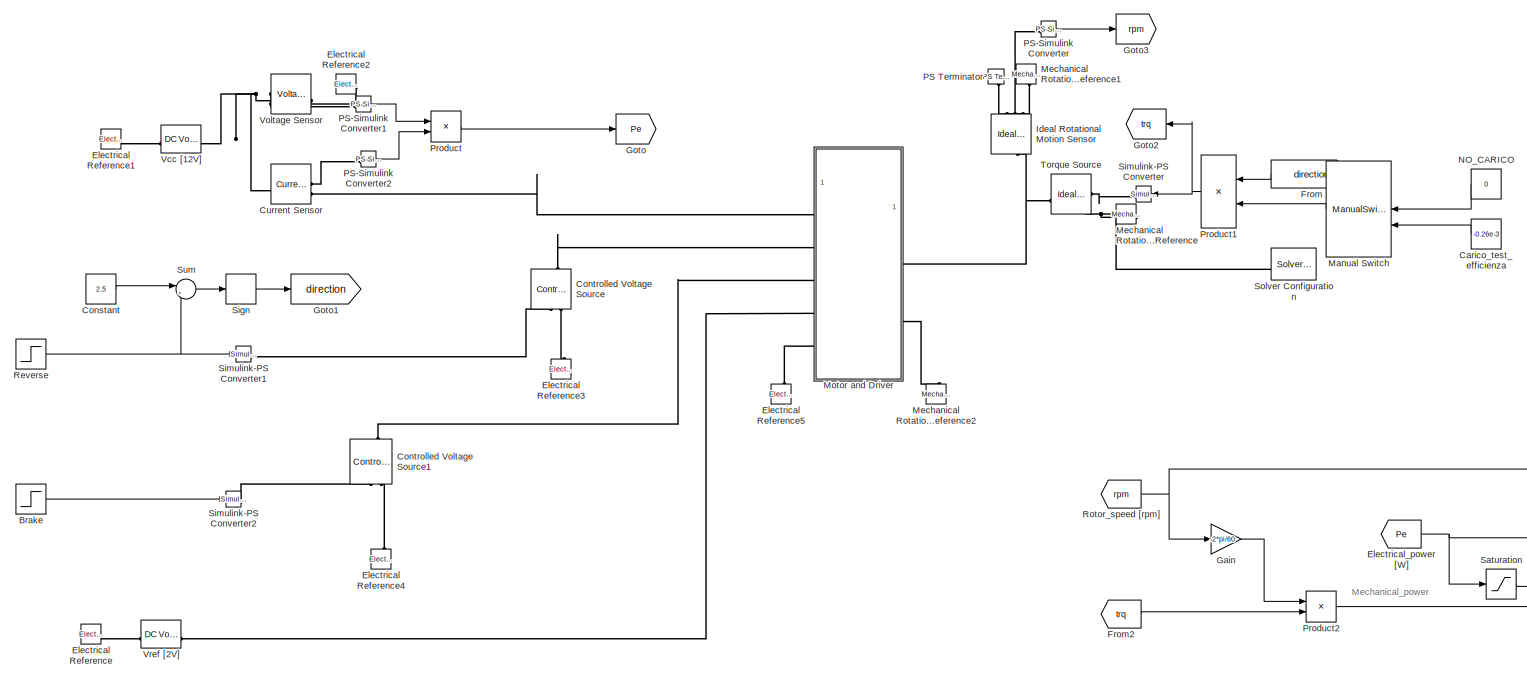
[diagram: root canvas - part 1/2, most of the canvas]
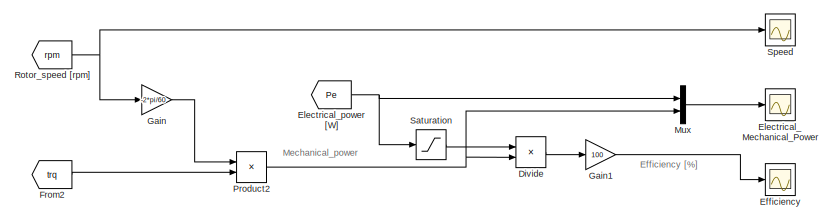
[diagram: root canvas - part 2/2, bottom right region]
MODEL slx_d8c86bf03504
KIND model
CONFIG AbsTol = auto
CONFIG EnableMultiTasking = off
CONFIG FixedStep = auto
CONFIG MaxStep = auto
CONFIG MinStep = auto
CONFIG RelTol = 1e-3
CONFIG SampleTimeConstraint = Unconstrained
CONFIG SolverName = VariableStepAuto
CONFIG StartTime = 0.0
CONFIG StopTime = 3
BLOCK [Step] Brake
  After = 5
  SampleTime = 0
  Time = 2
BLOCK [Constant] Carico_test_efficienza
  Value = -0.26e-3
BLOCK [Constant] Constant
  Value = 2.5
BLOCK [Reference] Controlled Voltage Source  REF=fl_lib/Electrical/Electrical Sources/Controlled Voltage
Source
  NameLocation = right
  SourceBlock = fl_lib/Electrical/Electrical Sources/Controlled Voltage\nSource
  SourceType = Controlled Voltage\nSource
BLOCK [Reference] Controlled Voltage Source1  REF=fl_lib/Electrical/Electrical Sources/Controlled Voltage
Source
  NameLocation = right
  SourceBlock = fl_lib/Electrical/Electrical Sources/Controlled Voltage\nSource
  SourceType = Controlled Voltage\nSource
BLOCK [Reference] Current Sensor  REF=fl_lib/Electrical/Electrical Sensors/Current Sensor
  SourceBlock = fl_lib/Electrical/Electrical Sensors/Current Sensor
  SourceType = Current Sensor
BLOCK [Product] Divide
  Inputs = /*
BLOCK [Scope] Efficiency
  Floating = off
  NumInputPorts = 1
  ScopeSpecificationString = Simulink.scopes.TimeScopeBlockCfg('CurrentConfiguration', extmgr.ConfigurationSet(extmgr.Configuration('Core','General UI',true),extmgr.Configuration('Core','Source UI',true),extmgr.Configuration('Sources','WiredSimulink',true),extmgr.Configuration('Visuals','Time Domain',true,'SerializedDisplays',{struct('MinYLimReal','-1.00000','MaxYLimReal','1.00000','YLabelReal','','MinYLimMag','0.00000','MaxY...<+1435ch>
BLOCK [Reference] Electrical Reference  REF=fl_lib/Electrical/Electrical Elements/Electrical Reference
  NameLocation = left
  SourceBlock = fl_lib/Electrical/Electrical Elements/Electrical Reference
  SourceType = Electrical Reference
BLOCK [Reference] Electrical Reference1  REF=fl_lib/Electrical/Electrical Elements/Electrical Reference
  NameLocation = left
  SourceBlock = fl_lib/Electrical/Electrical Elements/Electrical Reference
  SourceType = Electrical Reference
BLOCK [Reference] Electrical Reference2  REF=fl_lib/Electrical/Electrical Elements/Electrical Reference
  NameLocation = right
  SourceBlock = fl_lib/Electrical/Electrical Elements/Electrical Reference
  SourceType = Electrical Reference
BLOCK [Reference] Electrical Reference3  REF=fl_lib/Electrical/Electrical Elements/Electrical Reference
  LibrarySourceBlock = ee_lib/Connectors &\nReferences/Electrical Reference
  NameLocation = right
  SourceBlock = fl_lib/Electrical/Electrical Elements/Electrical Reference
  SourceType = Electrical Reference
BLOCK [Reference] Electrical Reference4  REF=fl_lib/Electrical/Electrical Elements/Electrical Reference
  LibrarySourceBlock = ee_lib/Connectors &\nReferences/Electrical Reference
  NameLocation = right
  SourceBlock = fl_lib/Electrical/Electrical Elements/Electrical Reference
  SourceType = Electrical Reference
BLOCK [Reference] Electrical Reference5  REF=fl_lib/Electrical/Electrical Elements/Electrical Reference
  LibrarySourceBlock = ee_lib/Connectors &\nReferences/Electrical Reference
  NameLocation = right
  SourceBlock = fl_lib/Electrical/Electrical Elements/Electrical Reference
  SourceType = Electrical Reference
BLOCK [Scope] Electrical_Mechanical_Power
  Floating = off
  NumInputPorts = 1
  ScopeSpecificationString = Simulink.scopes.TimeScopeBlockCfg('CurrentConfiguration', extmgr.ConfigurationSet(extmgr.Configuration('Core','General UI',true),extmgr.Configuration('Core','Source UI',true),extmgr.Configuration('Sources','WiredSimulink',true,'DataLoggingVariableName','ScopeData2'),extmgr.Configuration('Visuals','Time Domain',true,'SerializedDisplays',{struct('MinYLimReal','-0.54621','MaxYLimReal','4.91592','YLab...<+1531ch>
BLOCK [From] Electrical_power [W]
  GotoTag = Pe
BLOCK [From] From
  GotoTag = direction
BLOCK [From] From2
  GotoTag = trq
BLOCK [Gain] Gain
  Gain = -2*pi/60
BLOCK [Gain] Gain1
  Gain = 100
BLOCK [Goto] Goto
  GotoTag = Pe
BLOCK [Goto] Goto1
  GotoTag = direction
BLOCK [Goto] Goto2
  GotoTag = trq
BLOCK [Goto] Goto3
  GotoTag = rpm
BLOCK [Reference] Ideal Rotational Motion Sensor  REF=fl_lib/Mechanical/Mechanical Sensors/Ideal Rotational
Motion Sensor
  NameLocation = right
  SourceBlock = fl_lib/Mechanical/Mechanical Sensors/Ideal Rotational\nMotion Sensor
  SourceType = Ideal Rotational\nMotion Sensor
BLOCK [ManualSwitch] Manual Switch
BLOCK [Reference] Mechanical Rotational Reference  REF=fl_lib/Mechanical/Rotational Elements/Mechanical
Rotational Reference
  NameLocation = top
  SourceBlock = fl_lib/Mechanical/Rotational Elements/Mechanical\nRotational Reference
  SourceType = Mechanical\nRotational Reference
BLOCK [Reference] Mechanical Rotational Reference1  REF=fl_lib/Mechanical/Rotational Elements/Mechanical
Rotational Reference
  NameLocation = left
  SourceBlock = fl_lib/Mechanical/Rotational Elements/Mechanical\nRotational Reference
  SourceType = Mechanical\nRotational Reference
BLOCK [Reference] Mechanical Rotational Reference2  REF=fl_lib/Mechanical/Rotational Elements/Mechanical
Rotational Reference
  NameLocation = right
  SourceBlock = fl_lib/Mechanical/Rotational Elements/Mechanical\nRotational Reference
  SourceType = Mechanical\nRotational Reference
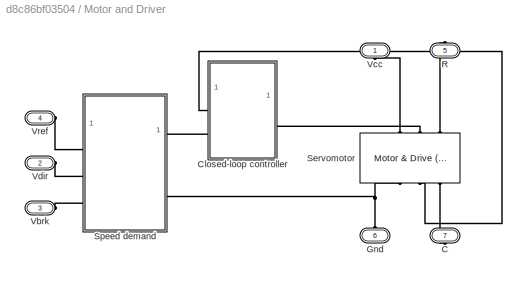
BLOCK [SubSystem] Motor and Driver
  Tag = PublishSubsystem
BLOCK [PMIOPort] Motor and Driver/C
  NameLocation = right
  Port = 7
  Side = Right
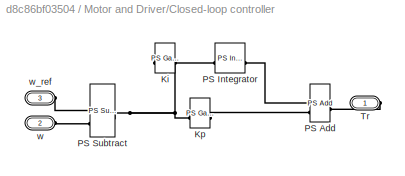
BLOCK [SubSystem] Motor and Driver/Closed-loop controller
BLOCK [Reference] Motor and Driver/Closed-loop controller/Ki  REF=fl_ps_legacy_lib/Legacy Physical
Signals/Functions/PS Gain
  SourceBlock = fl_ps_legacy_lib/Legacy Physical\nSignals/Functions/PS Gain
  SourceType = PS Gain
BLOCK [Reference] Motor and Driver/Closed-loop controller/Kp  REF=fl_ps_legacy_lib/Legacy Physical
Signals/Functions/PS Gain
  SourceBlock = fl_ps_legacy_lib/Legacy Physical\nSignals/Functions/PS Gain
  SourceType = PS Gain
BLOCK [Reference] Motor and Driver/Closed-loop controller/PS Add  REF=fl_ps_legacy_lib/Legacy Physical
Signals/Functions/PS Add
  SourceBlock = fl_ps_legacy_lib/Legacy Physical\nSignals/Functions/PS Add
  SourceType = PS Add
BLOCK [Reference] Motor and Driver/Closed-loop controller/PS Integrator  REF=fl_ps_legacy_lib/Legacy Physical
Signals/Linear Operators/PS Integrator
  SourceBlock = fl_ps_legacy_lib/Legacy Physical\nSignals/Linear Operators/PS Integrator
  SourceType = PS Integrator
BLOCK [Reference] Motor and Driver/Closed-loop controller/PS Subtract  REF=fl_ps_legacy_lib/Legacy Physical
Signals/Functions/PS Subtract
  SourceBlock = fl_ps_legacy_lib/Legacy Physical\nSignals/Functions/PS Subtract
  SourceType = PS Subtract
BLOCK [PMIOPort] Motor and Driver/Closed-loop controller/Tr
  Side = Right
BLOCK [PMIOPort] Motor and Driver/Closed-loop controller/w
  Port = 2
  Side = Left
BLOCK [PMIOPort] Motor and Driver/Closed-loop controller/w_ref
  NameLocation = top
  Port = 3
  Side = Left
BLOCK [PMIOPort] Motor and Driver/Gnd
  NameLocation = left
  Port = 6
  Side = Left
BLOCK [PMIOPort] Motor and Driver/R
  NameLocation = right
  Port = 5
  Side = Right
BLOCK [Reference] Motor and Driver/Servomotor  REF=ee_lib/Electromechanical/Motor & Drive
(System Level)
  NameLocation = left
  SourceBlock = ee_lib/Electromechanical/Motor & Drive\n(System Level)
  SourceType = Motor & Drive\n(System Level)
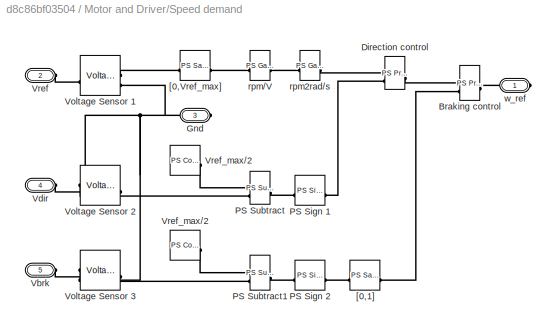
BLOCK [SubSystem] Motor and Driver/Speed demand
BLOCK [Reference] Motor and Driver/Speed demand/ Vref_max//2   REF=fl_lib/Physical Signals/Sources/PS Constant
  SourceBlock = fl_lib/Physical Signals/Sources/PS Constant
  SourceType = PS Constant
BLOCK [Reference] Motor and Driver/Speed demand/Braking control  REF=fl_ps_legacy_lib/Legacy Physical
Signals/Functions/PS Product
  SourceBlock = fl_ps_legacy_lib/Legacy Physical\nSignals/Functions/PS Product
  SourceType = PS Product
BLOCK [Reference] Motor and Driver/Speed demand/Direction control  REF=fl_ps_legacy_lib/Legacy Physical
Signals/Functions/PS Product
  SourceBlock = fl_ps_legacy_lib/Legacy Physical\nSignals/Functions/PS Product
  SourceType = PS Product
BLOCK [PMIOPort] Motor and Driver/Speed demand/Gnd
  Port = 3
  Side = Right
BLOCK [Reference] Motor and Driver/Speed demand/PS Sign 1  REF=fl_ps_legacy_lib/Legacy Physical
Signals/Nonlinear Operators/PS Sign
  SourceBlock = fl_ps_legacy_lib/Legacy Physical\nSignals/Nonlinear Operators/PS Sign
  SourceType = PS Sign
BLOCK [Reference] Motor and Driver/Speed demand/PS Sign 2  REF=fl_ps_legacy_lib/Legacy Physical
Signals/Nonlinear Operators/PS Sign
  SourceBlock = fl_ps_legacy_lib/Legacy Physical\nSignals/Nonlinear Operators/PS Sign
  SourceType = PS Sign
BLOCK [Reference] Motor and Driver/Speed demand/PS Subtract  REF=fl_ps_legacy_lib/Legacy Physical
Signals/Functions/PS Subtract
  SourceBlock = fl_ps_legacy_lib/Legacy Physical\nSignals/Functions/PS Subtract
  SourceType = PS Subtract
BLOCK [Reference] Motor and Driver/Speed demand/PS Subtract1  REF=fl_ps_legacy_lib/Legacy Physical
Signals/Functions/PS Subtract
  SourceBlock = fl_ps_legacy_lib/Legacy Physical\nSignals/Functions/PS Subtract
  SourceType = PS Subtract
BLOCK [PMIOPort] Motor and Driver/Speed demand/Vbrk
  Port = 5
  Side = Left
BLOCK [PMIOPort] Motor and Driver/Speed demand/Vdir
  Port = 4
  Side = Left
BLOCK [Reference] Motor and Driver/Speed demand/Voltage Sensor 1  REF=fl_lib/Electrical/Electrical Sensors/Voltage Sensor
  SourceBlock = fl_lib/Electrical/Electrical Sensors/Voltage Sensor
  SourceType = Voltage Sensor
BLOCK [Reference] Motor and Driver/Speed demand/Voltage Sensor 2  REF=fl_lib/Electrical/Electrical Sensors/Voltage Sensor
  SourceBlock = fl_lib/Electrical/Electrical Sensors/Voltage Sensor
  SourceType = Voltage Sensor
BLOCK [Reference] Motor and Driver/Speed demand/Voltage Sensor 3  REF=fl_lib/Electrical/Electrical Sensors/Voltage Sensor
  SourceBlock = fl_lib/Electrical/Electrical Sensors/Voltage Sensor
  SourceType = Voltage Sensor
BLOCK [PMIOPort] Motor and Driver/Speed demand/Vref
  Port = 2
  Side = Left
BLOCK [Reference] Motor and Driver/Speed demand/Vref_max//2  REF=fl_lib/Physical Signals/Sources/PS Constant
  SourceBlock = fl_lib/Physical Signals/Sources/PS Constant
  SourceType = PS Constant
BLOCK [Reference] Motor and Driver/Speed demand/[0,1]  REF=fl_ps_legacy_lib/Legacy Physical
Signals/Nonlinear Operators/PS Saturation
  SourceBlock = fl_ps_legacy_lib/Legacy Physical\nSignals/Nonlinear Operators/PS Saturation
  SourceType = PS Saturation
BLOCK [Reference] Motor and Driver/Speed demand/[0,Vref_max]  REF=fl_ps_legacy_lib/Legacy Physical
Signals/Nonlinear Operators/PS Saturation
  SourceBlock = fl_ps_legacy_lib/Legacy Physical\nSignals/Nonlinear Operators/PS Saturation
  SourceType = PS Saturation
BLOCK [Reference] Motor and Driver/Speed demand/rpm//V  REF=fl_ps_legacy_lib/Legacy Physical
Signals/Functions/PS Gain
  SourceBlock = fl_ps_legacy_lib/Legacy Physical\nSignals/Functions/PS Gain
  SourceType = PS Gain
BLOCK [Reference] Motor and Driver/Speed demand/rpm2rad//s  REF=fl_ps_legacy_lib/Legacy Physical
Signals/Functions/PS Gain
  SourceBlock = fl_ps_legacy_lib/Legacy Physical\nSignals/Functions/PS Gain
  SourceType = PS Gain
BLOCK [PMIOPort] Motor and Driver/Speed demand/w_ref
  Side = Right
BLOCK [PMIOPort] Motor and Driver/Vbrk
  Port = 3
  Side = Left
BLOCK [PMIOPort] Motor and Driver/Vcc
  NameLocation = left
  Side = Left
BLOCK [PMIOPort] Motor and Driver/Vdir
  Port = 2
  Side = Left
BLOCK [PMIOPort] Motor and Driver/Vref
  Port = 4
  Side = Left
BLOCK [Mux] Mux
  DisplayOption = bar
  Inputs = 2
BLOCK [Constant] NO_CARICO
  NameLocation = top
  Value = 0
BLOCK [Reference] PS Terminator  REF=fl_lib/Physical Signals/Sinks/PS Terminator
  NameLocation = right
  SourceBlock = fl_lib/Physical Signals/Sinks/PS Terminator
  SourceType = PS Terminator
BLOCK [Reference] PS-Simulink Converter  REF=nesl_utility/PS-Simulink
Converter
  SourceBlock = nesl_utility/PS-Simulink\nConverter
  SourceType = PS-Simulink\nConverter
BLOCK [Reference] PS-Simulink Converter1  REF=nesl_utility/PS-Simulink
Converter
  SourceBlock = nesl_utility/PS-Simulink\nConverter
  SourceType = PS-Simulink\nConverter
BLOCK [Reference] PS-Simulink Converter2  REF=nesl_utility/PS-Simulink
Converter
  SourceBlock = nesl_utility/PS-Simulink\nConverter
  SourceType = PS-Simulink\nConverter
BLOCK [Product] Product
BLOCK [Product] Product1
BLOCK [Product] Product2
BLOCK [Step] Reverse
  After = 5
  SampleTime = 0
BLOCK [From] Rotor_speed [rpm]
  GotoTag = rpm
BLOCK [Saturate] Saturation
  LowerLimit = 1e-3
  UpperLimit = inf
BLOCK [Signum] Sign
BLOCK [Reference] Simulink-PS Converter  REF=nesl_utility/Simulink-PS
Converter
  SourceBlock = nesl_utility/Simulink-PS\nConverter
  SourceType = Simulink-PS\nConverter
BLOCK [Reference] Simulink-PS Converter1  REF=nesl_utility/Simulink-PS
Converter
  SourceBlock = nesl_utility/Simulink-PS\nConverter
  SourceType = Simulink-PS\nConverter
BLOCK [Reference] Simulink-PS Converter2  REF=nesl_utility/Simulink-PS
Converter
  SourceBlock = nesl_utility/Simulink-PS\nConverter
  SourceType = Simulink-PS\nConverter
BLOCK [Reference] Solver Configuration  REF=nesl_utility/Solver
Configuration
  SourceBlock = nesl_utility/Solver\nConfiguration
  SourceType = Solver\nConfiguration
BLOCK [Scope] Speed
  Floating = off
  NameLocation = top
  NumInputPorts = 1
  ScopeSpecificationString = Simulink.scopes.TimeScopeBlockCfg('CurrentConfiguration', extmgr.ConfigurationSet(extmgr.Configuration('Core','General UI',true),extmgr.Configuration('Core','Source UI',true),extmgr.Configuration('Sources','WiredSimulink',true,'DataLoggingVariableName','ScopeData1'),extmgr.Configuration('Visuals','Time Domain',true,'SerializedDisplays',{struct('MinYLimReal','-6794.20877','MaxYLimReal','5988.47862'...<+1415ch>
BLOCK [Sum] Sum
  Inputs = |+-
BLOCK [Reference] Torque Source  REF=fl_lib/Mechanical/Mechanical Sources/Ideal Torque Source
  NameLocation = top
  SourceBlock = fl_lib/Mechanical/Mechanical Sources/Ideal Torque Source
  SourceType = Ideal Torque Source
BLOCK [Reference] Vcc [12V]  REF=fl_lib/Electrical/Electrical Sources/DC Voltage Source
  SourceBlock = fl_lib/Electrical/Electrical Sources/DC Voltage Source
  SourceType = DC Voltage Source
BLOCK [Reference] Voltage Sensor  REF=fl_lib/Electrical/Electrical Sensors/Voltage Sensor
  NameLocation = top
  SourceBlock = fl_lib/Electrical/Electrical Sensors/Voltage Sensor
  SourceType = Voltage Sensor
BLOCK [Reference] Vref [2V]  REF=fl_lib/Electrical/Electrical Sources/DC Voltage Source
  SourceBlock = fl_lib/Electrical/Electrical Sources/DC Voltage Source
  SourceType = DC Voltage Source
ANNOTATION (root): Efficiency [%]
ANNOTATION (root): Mechanical_power
LINE Brake:1 -> Simulink-PS Converter2:1
LINE Carico_test_efficienza:1 -> Manual Switch:2
LINE Constant:1 -> Sum:1
LINE Divide:1 -> Gain1:1
NET Electrical_power [W]:1 -> Mux:1, Saturation:1
LINE From2:1 -> Product2:2
LINE From:1 -> Product1:1
LINE Gain1:1 -> Efficiency:1
LINE Gain:1 -> Product2:1
LINE Manual Switch:1 -> Product1:2
LINE Mux:1 -> Electrical_Mechanical_Power:1
LINE NO_CARICO:1 -> Manual Switch:1
LINE PS-Simulink Converter1:1 -> Product:1
LINE PS-Simulink Converter2:1 -> Product:2
LINE PS-Simulink Converter:1 -> Goto3:1
NET Product1:1 -> Goto2:1, Simulink-PS Converter:1
NET Product2:1 -> Divide:2, Mux:2
LINE Product:1 -> Goto:1
NET Reverse:1 -> Simulink-PS Converter1:1, Sum:2
NET Rotor_speed [rpm]:1 -> Gain:1, Speed:1
LINE Saturation:1 -> Divide:1
LINE Sign:1 -> Goto1:1
LINE Sum:1 -> Sign:1
PLINE Controlled Voltage Source1:LConn1 -- Motor and Driver:LConn3
PLINE Controlled Voltage Source1:RConn1 -- Simulink-PS Converter2:RConn1
PLINE Controlled Voltage Source1:RConn2 -- Electrical Reference4:LConn1
PLINE Controlled Voltage Source:LConn1 -- Motor and Driver:LConn2
PLINE Controlled Voltage Source:RConn1 -- Simulink-PS Converter1:RConn1
PLINE Controlled Voltage Source:RConn2 -- Electrical Reference3:LConn1
PNET net1: Current Sensor:LConn1 -- Vcc [12V]:LConn1 -- Voltage Sensor:LConn1
PLINE Current Sensor:RConn1 -- PS-Simulink Converter2:LConn1
PLINE Current Sensor:RConn2 -- Motor and Driver:LConn1
PLINE Electrical Reference1:LConn1 -- Vcc [12V]:RConn1
PLINE Electrical Reference2:LConn1 -- Voltage Sensor:RConn2
PLINE Electrical Reference5:LConn1 -- Motor and Driver:LConn5
PLINE Electrical Reference:LConn1 -- Vref [2V]:RConn1
PNET net2: Ideal Rotational Motion Sensor:LConn1 -- Motor and Driver:RConn1 -- Torque Source:LConn1
PLINE Ideal Rotational Motion Sensor:RConn1 -- Mechanical Rotational Reference1:LConn1
PLINE Ideal Rotational Motion Sensor:RConn2 -- PS-Simulink Converter:LConn1
PLINE Ideal Rotational Motion Sensor:RConn3 -- PS Terminator:LConn1
PLINE Mechanical Rotational Reference2:LConn1 -- Motor and Driver:RConn2
PNET net3: Mechanical Rotational Reference:LConn1 -- Solver Configuration:RConn1 -- Torque Source:RConn2
PLINE Motor and Driver/C:RConn1 -- Motor and Driver/Servomotor:RConn3
PNET net4: Motor and Driver/Closed-loop controller/Ki:LConn1 -- Motor and Driver/Closed-loop controller/Kp:LConn1 -- Motor and Driver/Closed-loop controller/PS Subtract:RConn1
PLINE Motor and Driver/Closed-loop controller/Ki:RConn1 -- Motor and Driver/Closed-loop controller/PS Integrator:LConn1
PLINE Motor and Driver/Closed-loop controller/Kp:RConn1 -- Motor and Driver/Closed-loop controller/PS Add:LConn2
PLINE Motor and Driver/Closed-loop controller/PS Add:LConn1 -- Motor and Driver/Closed-loop controller/PS Integrator:RConn1
PLINE Motor and Driver/Closed-loop controller/PS Add:RConn1 -- Motor and Driver/Closed-loop controller/Tr:RConn1
PLINE Motor and Driver/Closed-loop controller/PS Subtract:LConn1 -- Motor and Driver/Closed-loop controller/w_ref:RConn1
PLINE Motor and Driver/Closed-loop controller/PS Subtract:LConn2 -- Motor and Driver/Closed-loop controller/w:RConn1
PLINE Motor and Driver/Closed-loop controller:LConn1 -- Motor and Driver/Servomotor:RConn2
PLINE Motor and Driver/Closed-loop controller:LConn2 -- Motor and Driver/Speed demand:RConn1
PLINE Motor and Driver/Closed-loop controller:RConn1 -- Motor and Driver/Servomotor:LConn2
PNET net5: Motor and Driver/Gnd:RConn1 -- Motor and Driver/Servomotor:RConn1 -- Motor and Driver/Speed demand:RConn2
PLINE Motor and Driver/R:RConn1 -- Motor and Driver/Servomotor:LConn3
PLINE Motor and Driver/Servomotor:LConn1 -- Motor and Driver/Vcc:RConn1
PLINE Motor and Driver/Speed demand/ Vref_max//2 :RConn1 -- Motor and Driver/Speed demand/PS Subtract1:LConn1
PLINE Motor and Driver/Speed demand/Braking control:LConn1 -- Motor and Driver/Speed demand/Direction control:RConn1
PLINE Motor and Driver/Speed demand/Braking control:LConn2 -- Motor and Driver/Speed demand/[0,1]:RConn1
PLINE Motor and Driver/Speed demand/Braking control:RConn1 -- Motor and Driver/Speed demand/w_ref:RConn1
PLINE Motor and Driver/Speed demand/Direction control:LConn1 -- Motor and Driver/Speed demand/rpm2rad//s:RConn1
PLINE Motor and Driver/Speed demand/Direction control:LConn2 -- Motor and Driver/Speed demand/PS Sign 1:RConn1
PNET net6: Motor and Driver/Speed demand/Gnd:RConn1 -- Motor and Driver/Speed demand/Voltage Sensor 1:RConn2 -- Motor and Driver/Speed demand/Voltage Sensor 2:RConn2 -- Motor and Driver/Speed demand/Voltage Sensor 3:RConn2
PLINE Motor and Driver/Speed demand/PS Sign 1:LConn1 -- Motor and Driver/Speed demand/PS Subtract:RConn1
PLINE Motor and Driver/Speed demand/PS Sign 2:LConn1 -- Motor and Driver/Speed demand/PS Subtract1:RConn1
PLINE Motor and Driver/Speed demand/PS Sign 2:RConn1 -- Motor and Driver/Speed demand/[0,1]:LConn1
PLINE Motor and Driver/Speed demand/PS Subtract1:LConn2 -- Motor and Driver/Speed demand/Voltage Sensor 3:RConn1
PLINE Motor and Driver/Speed demand/PS Subtract:LConn1 -- Motor and Driver/Speed demand/Vref_max//2:RConn1
PLINE Motor and Driver/Speed demand/PS Subtract:LConn2 -- Motor and Driver/Speed demand/Voltage Sensor 2:RConn1
PLINE Motor and Driver/Speed demand/Vbrk:RConn1 -- Motor and Driver/Speed demand/Voltage Sensor 3:LConn1
PLINE Motor and Driver/Speed demand/Vdir:RConn1 -- Motor and Driver/Speed demand/Voltage Sensor 2:LConn1
PLINE Motor and Driver/Speed demand/Voltage Sensor 1:LConn1 -- Motor and Driver/Speed demand/Vref:RConn1
PLINE Motor and Driver/Speed demand/Voltage Sensor 1:RConn1 -- Motor and Driver/Speed demand/[0,Vref_max]:LConn1
PLINE Motor and Driver/Speed demand/[0,Vref_max]:RConn1 -- Motor and Driver/Speed demand/rpm//V:LConn1
PLINE Motor and Driver/Speed demand/rpm//V:RConn1 -- Motor and Driver/Speed demand/rpm2rad//s:LConn1
PLINE Motor and Driver/Speed demand:LConn1 -- Motor and Driver/Vref:RConn1
PLINE Motor and Driver/Speed demand:LConn2 -- Motor and Driver/Vdir:RConn1
PLINE Motor and Driver/Speed demand:LConn3 -- Motor and Driver/Vbrk:RConn1
PLINE Motor and Driver:LConn4 -- Vref [2V]:LConn1
PLINE PS-Simulink Converter1:LConn1 -- Voltage Sensor:RConn1
PLINE Simulink-PS Converter:RConn1 -- Torque Source:RConn1
note: NET lines group one-source signal fan-out (src -> all destinations, sorted); 1:1 wires keep LINE; PNET lines group multi-terminal physical nets as a canonical sorted terminal list (undirected conserving connections); 2-terminal nets keep the pairwise PLINE form
